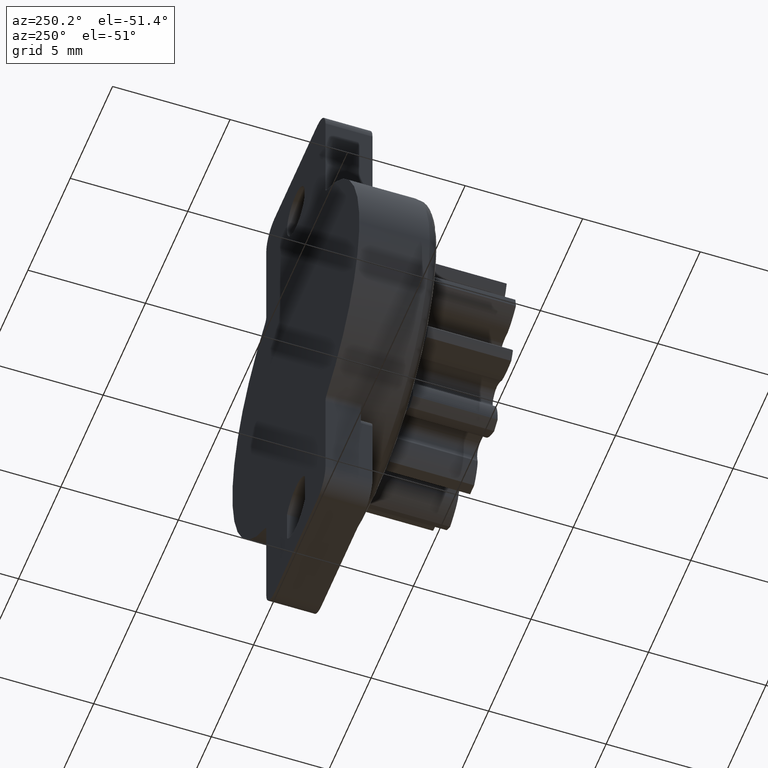
[diagram: clean part render]
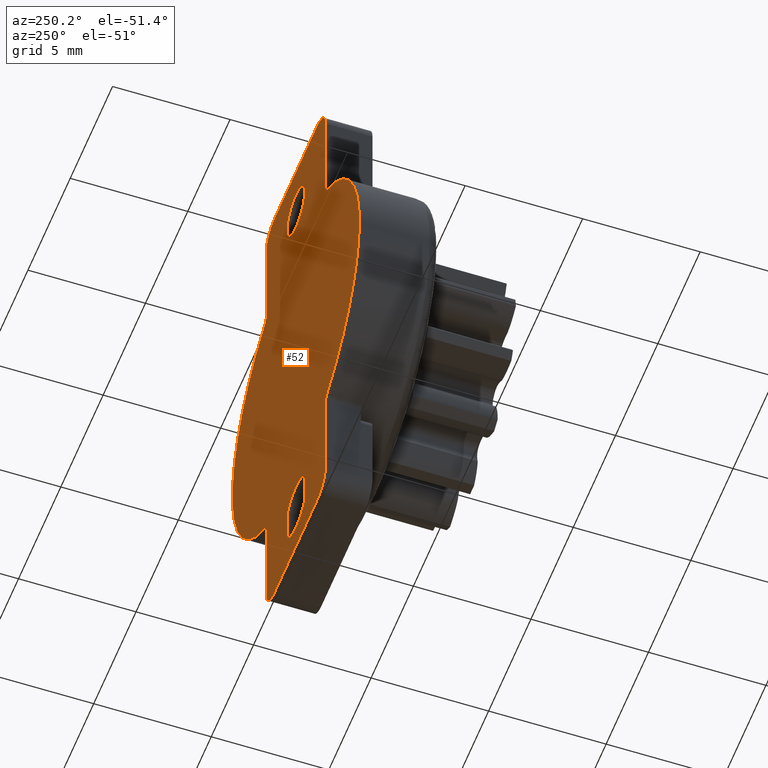
[diagram: same view with one face highlighted and labeled with its STEP entity id]
A machine part, auxiliary view. The second image highlights one B-rep face of the part: STEP entity #52.
In plain terms, the highlighted planar face has unit normal (-0, 1, 0).
Its self-contained STEP definition (entity closure, byte-faithful):
#52=ADVANCED_FACE('',(#809,#810,#811),#808,.T.);
#808=PLANE('',#7199);
#809=FACE_OUTER_BOUND('',#7200,.T.);
#810=FACE_BOUND('',#7201,.T.);
#811=FACE_BOUND('',#7202,.T.);
#7196=CARTESIAN_POINT('',(-9.00000085831E+00,0.00000000000E+00,-1.44000002649E+01));
#7197=DIRECTION('',(-0.00000000000E+00,1.00000000000E+00,0.00000000000E+00));
#7198=DIRECTION('',(0.00000000000E+00,0.00000000000E+00,1.00000000000E+00));
#7199=AXIS2_PLACEMENT_3D('',#7196,#7197,#7198);
#7200=EDGE_LOOP('',(#10525,#10526,#10527,#10528,#10529,#10530,#10531,#10532,#10533,#10534,#10535,#10536,#10537,#10538,#10539,#10540));
#7201=EDGE_LOOP('',(#10541,#10542));
#7202=EDGE_LOOP('',(#10543,#10544,#10545,#10546));
#10525=ORIENTED_EDGE('',*,*,#14325,.F.);
#10526=ORIENTED_EDGE('',*,*,#14326,.F.);
#10527=ORIENTED_EDGE('',*,*,#14327,.F.);
#10528=ORIENTED_EDGE('',*,*,#14328,.F.);
#10529=ORIENTED_EDGE('',*,*,#14329,.F.);
#10530=ORIENTED_EDGE('',*,*,#14330,.T.);
#10531=ORIENTED_EDGE('',*,*,#14331,.F.);
#10532=ORIENTED_EDGE('',*,*,#14332,.T.);
#10533=ORIENTED_EDGE('',*,*,#14333,.F.);
#10534=ORIENTED_EDGE('',*,*,#14334,.F.);
#10535=ORIENTED_EDGE('',*,*,#14335,.F.);
#10536=ORIENTED_EDGE('',*,*,#14336,.F.);
#10537=ORIENTED_EDGE('',*,*,#14337,.F.);
#10538=ORIENTED_EDGE('',*,*,#14338,.T.);
#10539=ORIENTED_EDGE('',*,*,#14339,.F.);
#10540=ORIENTED_EDGE('',*,*,#14340,.T.);
#10541=ORIENTED_EDGE('',*,*,#14341,.T.);
#10542=ORIENTED_EDGE('',*,*,#14342,.T.);
#10543=ORIENTED_EDGE('',*,*,#14319,.T.);
#10544=ORIENTED_EDGE('',*,*,#14298,.T.);
#10545=ORIENTED_EDGE('',*,*,#14322,.T.);
#10546=ORIENTED_EDGE('',*,*,#14321,.T.);
#14298=EDGE_CURVE('',#16336,#16343,#16350,.T.);
#14319=EDGE_CURVE('',#16487,#16336,#16494,.T.);
#14321=EDGE_CURVE('',#16500,#16487,#16507,.T.);
#14322=EDGE_CURVE('',#16343,#16500,#16513,.T.);
#14325=EDGE_CURVE('',#16531,#16532,#16533,.T.);
#14326=EDGE_CURVE('',#16539,#16531,#16540,.T.);
#14327=EDGE_CURVE('',#16546,#16539,#16547,.T.);
#14328=EDGE_CURVE('',#16553,#16546,#16554,.T.);
#14329=EDGE_CURVE('',#16560,#16553,#16561,.T.);
#14330=EDGE_CURVE('',#16560,#16567,#16568,.T.);
#14331=EDGE_CURVE('',#16574,#16567,#16575,.T.);
#14332=EDGE_CURVE('',#16574,#16581,#16582,.T.);
#14333=EDGE_CURVE('',#16588,#16581,#16589,.T.);
#14334=EDGE_CURVE('',#16595,#16588,#16596,.T.);
#14335=EDGE_CURVE('',#16602,#16595,#16603,.T.);
#14336=EDGE_CURVE('',#16609,#16602,#16610,.T.);
#14337=EDGE_CURVE('',#16616,#16609,#16617,.T.);
#14338=EDGE_CURVE('',#16616,#16623,#16624,.T.);
#14339=EDGE_CURVE('',#16630,#16623,#16631,.T.);
#14340=EDGE_CURVE('',#16630,#16532,#16637,.T.);
#14341=EDGE_CURVE('',#16643,#16644,#16645,.T.);
#14342=EDGE_CURVE('',#16644,#16643,#16651,.T.);
#16336=VERTEX_POINT('',#29002);
#16343=VERTEX_POINT('',#29006);
#16350=CIRCLE('',#29013,1.30000012398E+00);
#16487=VERTEX_POINT('',#29103);
#16494=LINE('',#29107,#29108);
#16500=VERTEX_POINT('',#29110);
#16507=CIRCLE('',#29117,1.30000012398E+00);
#16513=LINE('',#29118,#29119);
#16531=VERTEX_POINT('',#29127);
#16532=VERTEX_POINT('',#29128);
#16533=LINE('',#29129,#29130);
#16539=VERTEX_POINT('',#29132);
#16540=CIRCLE('',#29136,1.00000009537E+00);
#16546=VERTEX_POINT('',#29137);
#16547=LINE('',#29138,#29139);
#16553=VERTEX_POINT('',#29141);
#16554=CIRCLE('',#29145,1.00000009537E+00);
#16560=VERTEX_POINT('',#29146);
#16561=LINE('',#29147,#29148);
#16567=VERTEX_POINT('',#29150);
#16568=CIRCLE('',#29154,3.00000000000E-01);
#16574=VERTEX_POINT('',#29155);
#16575=CIRCLE('',#29159,7.50000071526E+00);
#16581=VERTEX_POINT('',#29160);
#16582=CIRCLE('',#29164,3.00000000000E-01);
#16588=VERTEX_POINT('',#29165);
#16589=LINE('',#29166,#29167);
#16595=VERTEX_POINT('',#29169);
#16596=CIRCLE('',#29173,1.00000009537E+00);
#16602=VERTEX_POINT('',#29174);
#16603=LINE('',#29175,#29176);
#16609=VERTEX_POINT('',#29178);
#16610=CIRCLE('',#29182,1.00000009537E+00);
#16616=VERTEX_POINT('',#29183);
#16617=LINE('',#29184,#29185);
#16623=VERTEX_POINT('',#29187);
#16624=CIRCLE('',#29191,3.00000000000E-01);
#16630=VERTEX_POINT('',#29192);
#16631=CIRCLE('',#29196,7.50000071526E+00);
#16637=CIRCLE('',#29200,3.00000000000E-01);
#16643=VERTEX_POINT('',#29201);
#16644=VERTEX_POINT('',#29202);
#16645=CIRCLE('',#29206,1.05000010014E+00);
#16651=CIRCLE('',#29210,1.05000010014E+00);
#29002=CARTESIAN_POINT('',(1.05000000000E+00,0.00000000000E+00,-8.73351440000E+00));
#29006=CARTESIAN_POINT('',(-1.05000000000E+00,0.00000000000E+00,-8.73351440000E+00));
#29010=CARTESIAN_POINT('',(0.00000000000E+00,0.00000000000E+00,-9.50000000000E+00));
#29011=DIRECTION('',(0.00000000000E+00,-1.00000000000E+00,0.00000000000E+00));
#29012=DIRECTION('',(-0.00000000000E+00,-0.00000000000E+00,-1.00000000000E+00));
#29013=AXIS2_PLACEMENT_3D('',#29010,#29011,#29012);
#29103=CARTESIAN_POINT('',(1.05000007969E+00,0.00000000000E+00,-1.02664855869E+01));
#29107=CARTESIAN_POINT('',(1.05000000000E+00,0.00000000000E+00,-1.02664855869E+01));
#29108=VECTOR('',#29109,1.53297118694E+00);
#29109=DIRECTION('',(0.00000000000E+00,0.00000000000E+00,1.00000000000E+00));
#29110=CARTESIAN_POINT('',(-1.05000000000E+00,0.00000000000E+00,-1.02664856000E+01));
#29114=CARTESIAN_POINT('',(0.00000000000E+00,0.00000000000E+00,-9.50000000000E+00));
#29115=DIRECTION('',(0.00000000000E+00,-1.00000000000E+00,-0.00000000000E+00));
#29116=DIRECTION('',(8.07692291968E-01,0.00000000000E+00,-5.89604241416E-01));
#29117=AXIS2_PLACEMENT_3D('',#29114,#29115,#29116);
#29118=CARTESIAN_POINT('',(-1.05000000000E+00,0.00000000000E+00,-8.73351440000E+00));
#29119=VECTOR('',#29120,1.53297120000E+00);
#29120=DIRECTION('',(0.00000000000E+00,0.00000000000E+00,-1.00000000000E+00));
#29127=CARTESIAN_POINT('',(-3.50000009537E+00,0.00000000000E+00,1.10000000524E+01));
#29128=CARTESIAN_POINT('',(-3.50000000000E+00,0.00000000000E+00,6.81175536540E+00));
#29129=CARTESIAN_POINT('',(-3.50000000000E+00,0.00000000000E+00,1.10000000524E+01));
#29130=VECTOR('',#29131,4.18824468696E+00);
#29131=DIRECTION('',(0.00000000000E+00,0.00000000000E+00,-1.00000000000E+00));
#29132=CARTESIAN_POINT('',(-2.50000000000E+00,0.00000000000E+00,1.20000016000E+01));
#29133=CARTESIAN_POINT('',(-2.50000000000E+00,0.00000000000E+00,1.10000000000E+01));
#29134=DIRECTION('',(0.00000000000E+00,-1.00000000000E+00,0.00000000000E+00));
#29135=DIRECTION('',(-0.00000000000E+00,-0.00000000000E+00,-1.00000000000E+00));
#29136=AXIS2_PLACEMENT_3D('',#29133,#29134,#29135);
#29137=CARTESIAN_POINT('',(2.50000008727E+00,0.00000000000E+00,1.20000000954E+01));
#29138=CARTESIAN_POINT('',(2.50000008727E+00,0.00000000000E+00,1.20000016000E+01));
#29139=VECTOR('',#29140,5.00000008727E+00);
#29140=DIRECTION('',(-1.00000000000E+00,0.00000000000E+00,0.00000000000E+00));
#29141=CARTESIAN_POINT('',(3.50000000000E+00,0.00000000000E+00,1.10000000000E+01));
#29142=CARTESIAN_POINT('',(2.50000000000E+00,0.00000000000E+00,1.10000000000E+01));
#29143=DIRECTION('',(0.00000000000E+00,-1.00000000000E+00,0.00000000000E+00));
#29144=DIRECTION('',(-0.00000000000E+00,-0.00000000000E+00,-1.00000000000E+00));
#29145=AXIS2_PLACEMENT_3D('',#29142,#29143,#29144);
#29146=CARTESIAN_POINT('',(3.50000000000E+00,0.00000000000E+00,6.81175536540E+00));
#29147=CARTESIAN_POINT('',(3.50000000000E+00,0.00000000000E+00,6.81175536540E+00));
#29148=VECTOR('',#29149,4.18824463460E+00);
#29149=DIRECTION('',(0.00000000000E+00,0.00000000000E+00,1.00000000000E+00));
#29150=CARTESIAN_POINT('',(3.65384616725E+00,0.00000000000E+00,6.54976479844E+00));
#29151=CARTESIAN_POINT('',(3.80000000000E+00,0.00000000000E+00,6.81175536540E+00));
#29152=DIRECTION('',(0.00000000000E+00,-1.00000000000E+00,0.00000000000E+00));
#29153=DIRECTION('',(-0.00000000000E+00,-0.00000000000E+00,-1.00000000000E+00));
#29154=AXIS2_PLACEMENT_3D('',#29151,#29152,#29153);
#29155=CARTESIAN_POINT('',(3.65384616725E+00,0.00000000000E+00,-6.54976479844E+00));
#29156=CARTESIAN_POINT('',(0.00000000000E+00,0.00000000000E+00,0.00000000000E+00));
#29157=DIRECTION('',(0.00000000000E+00,-1.00000000000E+00,0.00000000000E+00));
#29158=DIRECTION('',(-0.00000000000E+00,-0.00000000000E+00,-1.00000000000E+00));
#29159=AXIS2_PLACEMENT_3D('',#29156,#29157,#29158);
#29160=CARTESIAN_POINT('',(3.50000000000E+00,0.00000000000E+00,-6.81175536540E+00));
#29161=CARTESIAN_POINT('',(3.80000000000E+00,0.00000000000E+00,-6.81175536540E+00));
#29162=DIRECTION('',(0.00000000000E+00,-1.00000000000E+00,0.00000000000E+00));
#29163=DIRECTION('',(-0.00000000000E+00,-0.00000000000E+00,-1.00000000000E+00));
#29164=AXIS2_PLACEMENT_3D('',#29161,#29162,#29163);
#29165=CARTESIAN_POINT('',(3.50000009537E+00,0.00000000000E+00,-1.09999999476E+01));
#29166=CARTESIAN_POINT('',(3.50000000000E+00,0.00000000000E+00,-1.09999999476E+01));
#29167=VECTOR('',#29168,4.18824458224E+00);
#29168=DIRECTION('',(0.00000000000E+00,0.00000000000E+00,1.00000000000E+00));
#29169=CARTESIAN_POINT('',(2.50000000000E+00,0.00000000000E+00,-1.20000000000E+01));
#29170=CARTESIAN_POINT('',(2.50000000000E+00,0.00000000000E+00,-1.10000000000E+01));
#29171=DIRECTION('',(0.00000000000E+00,-1.00000000000E+00,0.00000000000E+00));
#29172=DIRECTION('',(-0.00000000000E+00,-0.00000000000E+00,-1.00000000000E+00));
#29173=AXIS2_PLACEMENT_3D('',#29170,#29171,#29172);
#29174=CARTESIAN_POINT('',(-2.50000000000E+00,0.00000000000E+00,-1.20000000954E+01));
#29175=CARTESIAN_POINT('',(-2.50000000000E+00,0.00000000000E+00,-1.20000000000E+01));
#29176=VECTOR('',#29177,5.00000000000E+00);
#29177=DIRECTION('',(1.00000000000E+00,0.00000000000E+00,0.00000000000E+00));
#29178=CARTESIAN_POINT('',(-3.50000000000E+00,0.00000000000E+00,-1.10000000000E+01));
#29179=CARTESIAN_POINT('',(-2.50000000000E+00,0.00000000000E+00,-1.10000000000E+01));
#29180=DIRECTION('',(0.00000000000E+00,-1.00000000000E+00,0.00000000000E+00));
#29181=DIRECTION('',(-0.00000000000E+00,-0.00000000000E+00,-1.00000000000E+00));
#29182=AXIS2_PLACEMENT_3D('',#29179,#29180,#29181);
#29183=CARTESIAN_POINT('',(-3.50000000000E+00,0.00000000000E+00,-6.81175536540E+00));
#29184=CARTESIAN_POINT('',(-3.50000000000E+00,0.00000000000E+00,-6.81175536540E+00));
#29185=VECTOR('',#29186,4.18824463460E+00);
#29186=DIRECTION('',(0.00000000000E+00,0.00000000000E+00,-1.00000000000E+00));
#29187=CARTESIAN_POINT('',(-3.65384616725E+00,0.00000000000E+00,-6.54976479844E+00));
#29188=CARTESIAN_POINT('',(-3.80000000000E+00,0.00000000000E+00,-6.81175536540E+00));
#29189=DIRECTION('',(0.00000000000E+00,-1.00000000000E+00,0.00000000000E+00));
#29190=DIRECTION('',(-0.00000000000E+00,-0.00000000000E+00,-1.00000000000E+00));
#29191=AXIS2_PLACEMENT_3D('',#29188,#29189,#29190);
#29192=CARTESIAN_POINT('',(-3.65384616725E+00,0.00000000000E+00,6.54976479844E+00));
#29193=CARTESIAN_POINT('',(0.00000000000E+00,0.00000000000E+00,0.00000000000E+00));
#29194=DIRECTION('',(0.00000000000E+00,-1.00000000000E+00,0.00000000000E+00));
#29195=DIRECTION('',(-0.00000000000E+00,-0.00000000000E+00,-1.00000000000E+00));
#29196=AXIS2_PLACEMENT_3D('',#29193,#29194,#29195);
#29197=CARTESIAN_POINT('',(-3.80000000000E+00,0.00000000000E+00,6.81175536540E+00));
#29198=DIRECTION('',(0.00000000000E+00,-1.00000000000E+00,0.00000000000E+00));
#29199=DIRECTION('',(-0.00000000000E+00,-0.00000000000E+00,-1.00000000000E+00));
#29200=AXIS2_PLACEMENT_3D('',#29197,#29198,#29199);
#29201=CARTESIAN_POINT('',(0.00000000000E+00,0.00000000000E+00,1.05500001001E+01));
#29202=CARTESIAN_POINT('',(2.59052039079E-16,0.00000000000E+00,8.44999989986E+00));
#29203=CARTESIAN_POINT('',(0.00000000000E+00,0.00000000000E+00,9.50000000000E+00));
#29204=DIRECTION('',(0.00000000000E+00,-1.00000000000E+00,0.00000000000E+00));
#29205=DIRECTION('',(-1.22460635382E-16,0.00000000000E+00,1.00000000000E+00));
#29206=AXIS2_PLACEMENT_3D('',#29203,#29204,#29205);
#29207=CARTESIAN_POINT('',(0.00000000000E+00,0.00000000000E+00,9.50000000000E+00));
#29208=DIRECTION('',(0.00000000000E+00,-1.00000000000E+00,0.00000000000E+00));
#29209=DIRECTION('',(-1.22460635382E-16,0.00000000000E+00,1.00000000000E+00));
#29210=AXIS2_PLACEMENT_3D('',#29207,#29208,#29209);